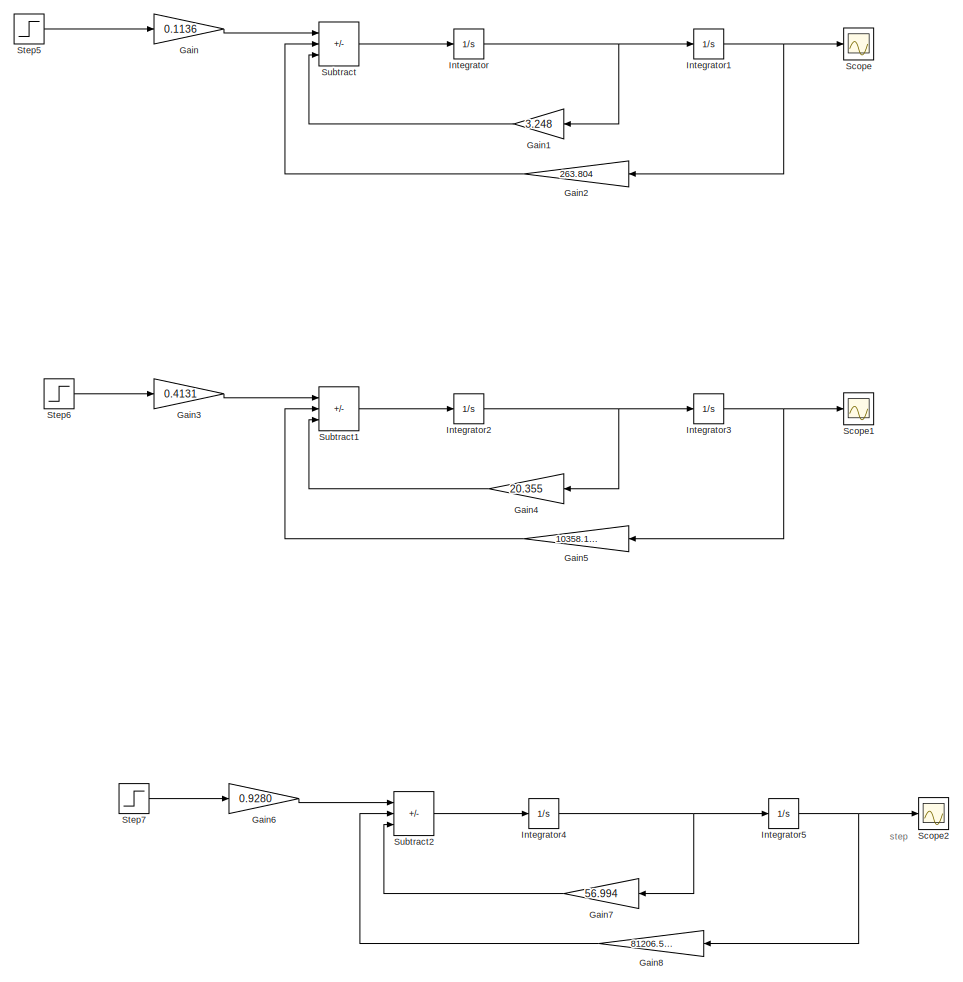
[diagram: root canvas - part 1/3, left side, full height]
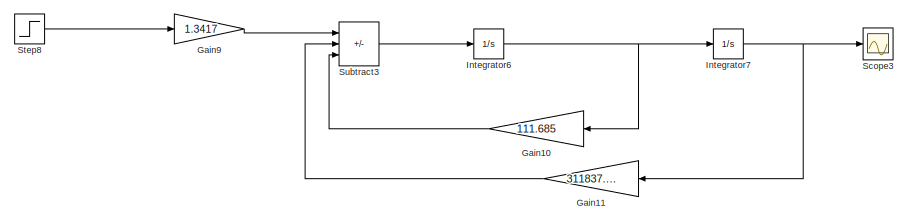
[diagram: root canvas - part 2/3, top right region]
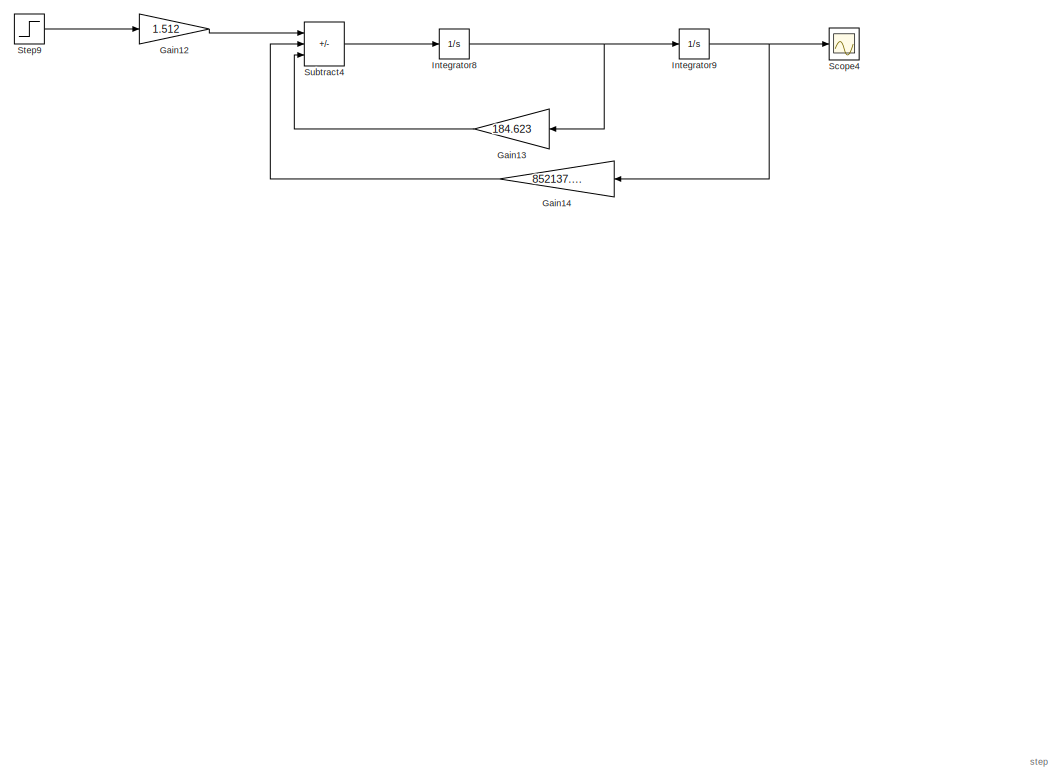
[diagram: root canvas - part 3/3, middle right region]
MODEL slx_0036078c0b79
KIND model
CONFIG AbsTol = auto
CONFIG EnableMultiTasking = off
CONFIG FixedStep = auto
CONFIG MaxStep = auto
CONFIG MinStep = auto
CONFIG RelTol = 1e-3
CONFIG SampleTimeConstraint = Unconstrained
CONFIG SolverName = VariableStepAuto
CONFIG StartTime = 0.0
CONFIG StopTime = 10.0
BLOCK [Gain] Gain
  Gain = 0.1136
BLOCK [Gain] Gain1
  Gain = 3.248
BLOCK [Gain] Gain10
  Gain = 111.685
BLOCK [Gain] Gain11
  Gain = 311837.785
BLOCK [Gain] Gain12
  Gain = 1.512
BLOCK [Gain] Gain13
  Gain = 184.623
BLOCK [Gain] Gain14
  Gain = 852137.646
BLOCK [Gain] Gain2
  Gain = 263.804
BLOCK [Gain] Gain3
  Gain = 0.4131
BLOCK [Gain] Gain4
  Gain = 20.355
BLOCK [Gain] Gain5
  Gain = 10358.158
BLOCK [Gain] Gain6
  Gain = 0.9280
BLOCK [Gain] Gain7
  Gain = 56.994
BLOCK [Gain] Gain8
  Gain = 81206.525
BLOCK [Gain] Gain9
  Gain = 1.3417
BLOCK [Integrator] Integrator
BLOCK [Integrator] Integrator1
BLOCK [Integrator] Integrator2
BLOCK [Integrator] Integrator3
BLOCK [Integrator] Integrator4
BLOCK [Integrator] Integrator5
BLOCK [Integrator] Integrator6
BLOCK [Integrator] Integrator7
BLOCK [Integrator] Integrator8
BLOCK [Integrator] Integrator9
BLOCK [Scope] Scope
  Floating = off
  NumInputPorts = 1
  ScopeSpecificationString = Simulink.scopes.TimeScopeBlockCfg('CurrentConfiguration', extmgr.ConfigurationSet(extmgr.Configuration('Core','General UI',true),extmgr.Configuration('Core','Source UI',true),extmgr.Configuration('Sources','WiredSimulink',true,'DataLoggingVariableName','ScopeData1'),extmgr.Configuration('Visuals','Time Domain',true,'SerializedDisplays',{struct('MinYLimReal','-0.00009','MaxYLimReal','0.00084','YLab...<+1401ch>
BLOCK [Scope] Scope1
  Floating = off
  NumInputPorts = 1
  ScopeSpecificationString = Simulink.scopes.TimeScopeBlockCfg('CurrentConfiguration', extmgr.ConfigurationSet(extmgr.Configuration('Core','General UI',true),extmgr.Configuration('Core','Source UI',true),extmgr.Configuration('Sources','WiredSimulink',true,'DataLoggingVariableName','ScopeData2'),extmgr.Configuration('Visuals','Time Domain',true,'SerializedDisplays',{struct('MinYLimReal','-0.000009','MaxYLimReal','0.000078','YL...<+1400ch>
BLOCK [Scope] Scope2
  Floating = off
  NumInputPorts = 1
  ScopeSpecificationString = Simulink.scopes.TimeScopeBlockCfg('CurrentConfiguration', extmgr.ConfigurationSet(extmgr.Configuration('Core','General UI',true),extmgr.Configuration('Core','Source UI',true),extmgr.Configuration('Sources','WiredSimulink',true,'DataLoggingVariableName','ScopeData3'),extmgr.Configuration('Visuals','Time Domain',true,'SerializedDisplays',{struct('MinYLimReal','-0.000002','MaxYLimReal','0.000022','YL...<+1411ch>
BLOCK [Scope] Scope3
  Floating = off
  NumInputPorts = 1
  ScopeSpecificationString = Simulink.scopes.TimeScopeBlockCfg('CurrentConfiguration', extmgr.ConfigurationSet(extmgr.Configuration('Core','General UI',true),extmgr.Configuration('Core','Source UI',true),extmgr.Configuration('Sources','WiredSimulink',true,'DataLoggingVariableName','ScopeData4'),extmgr.Configuration('Visuals','Time Domain',true,'SerializedDisplays',{struct('MinYLimReal','-0.0000009','MaxYLimReal','0.0000084','...<+1419ch>
BLOCK [Scope] Scope4
  Floating = off
  NumInputPorts = 1
  ScopeSpecificationString = Simulink.scopes.TimeScopeBlockCfg('CurrentConfiguration', extmgr.ConfigurationSet(extmgr.Configuration('Core','General UI',true),extmgr.Configuration('Core','Source UI',true),extmgr.Configuration('Sources','WiredSimulink',true),extmgr.Configuration('Visuals','Time Domain',true,'SerializedDisplays',{struct('MinYLimReal','-0.0000004','MaxYLimReal','0.0000034','YLabelReal','','MinYLimMag','0.0000000'...<+1380ch>
BLOCK [Step] Step5
  SampleTime = 0.01
BLOCK [Step] Step6
  SampleTime = 0.01
BLOCK [Step] Step7
  SampleTime = 0.01
BLOCK [Step] Step8
  SampleTime = 0.01
BLOCK [Step] Step9
  SampleTime = 0.01
BLOCK [Sum] Subtract
  IconShape = rectangular
  Inputs = +--
BLOCK [Sum] Subtract1
  IconShape = rectangular
  Inputs = +--
BLOCK [Sum] Subtract2
  IconShape = rectangular
  Inputs = +--
BLOCK [Sum] Subtract3
  IconShape = rectangular
  Inputs = +--
BLOCK [Sum] Subtract4
  IconShape = rectangular
  Inputs = +--
ANNOTATION (root): step
LINE Gain10:1 -> Subtract3:3
LINE Gain11:1 -> Subtract3:2
LINE Gain12:1 -> Subtract4:1
LINE Gain13:1 -> Subtract4:3
LINE Gain14:1 -> Subtract4:2
LINE Gain1:1 -> Subtract:3
LINE Gain2:1 -> Subtract:2
LINE Gain3:1 -> Subtract1:1
LINE Gain4:1 -> Subtract1:3
LINE Gain5:1 -> Subtract1:2
LINE Gain6:1 -> Subtract2:1
LINE Gain7:1 -> Subtract2:3
LINE Gain8:1 -> Subtract2:2
LINE Gain9:1 -> Subtract3:1
LINE Gain:1 -> Subtract:1
NET Integrator1:1 -> Gain2:1, Scope:1
NET Integrator2:1 -> Gain4:1, Integrator3:1
NET Integrator3:1 -> Gain5:1, Scope1:1
NET Integrator4:1 -> Gain7:1, Integrator5:1
NET Integrator5:1 -> Gain8:1, Scope2:1
NET Integrator6:1 -> Gain10:1, Integrator7:1
NET Integrator7:1 -> Gain11:1, Scope3:1
NET Integrator8:1 -> Gain13:1, Integrator9:1
NET Integrator9:1 -> Gain14:1, Scope4:1
NET Integrator:1 -> Gain1:1, Integrator1:1
LINE Step5:1 -> Gain:1
LINE Step6:1 -> Gain3:1
LINE Step7:1 -> Gain6:1
LINE Step8:1 -> Gain9:1
LINE Step9:1 -> Gain12:1
LINE Subtract1:1 -> Integrator2:1
LINE Subtract2:1 -> Integrator4:1
LINE Subtract3:1 -> Integrator6:1
LINE Subtract4:1 -> Integrator8:1
LINE Subtract:1 -> Integrator:1
note: NET lines group one-source signal fan-out (src -> all destinations, sorted); 1:1 wires keep LINE
